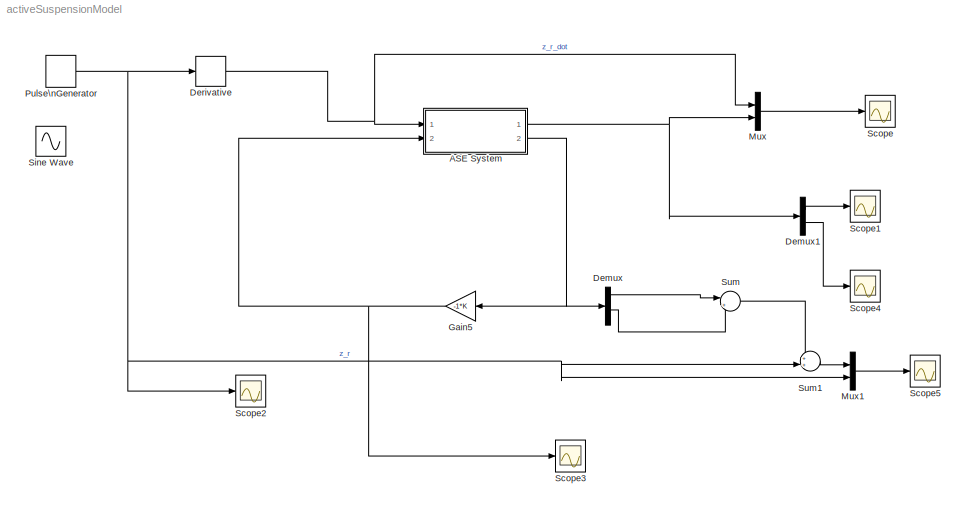
MODEL activeSuspensionModel
KIND model
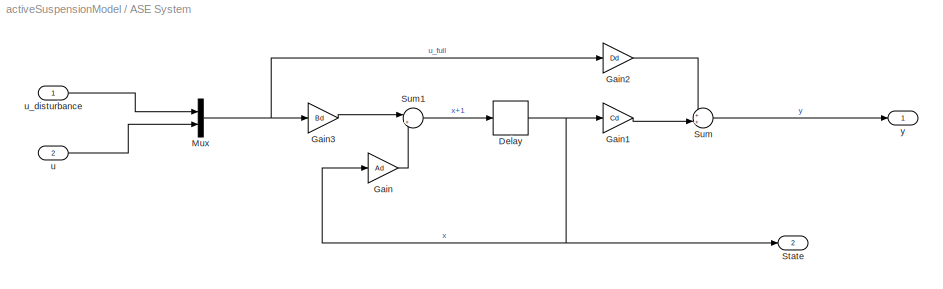
BLOCK [SubSystem] ASE System
  Ports = [2, 2]
  RequestExecContextInheritance = off
  SID = 12
  Variant = off
BLOCK [Delay] ASE System/Delay
  DelayLength = 1
  InputPortMap = u0
  Ports = [1, 1]
  SID = 23
  SampleTime = T
BLOCK [Gain] ASE System/Gain
  Gain = Ad
  Multiplication = Matrix(K*u)
  OutDataTypeStr = Inherit: Inherit via internal rule
  ParamDataTypeStr = Inherit: Inherit via internal rule
  SID = 2
  SaturateOnIntegerOverflow = off
BLOCK [Gain] ASE System/Gain1
  Gain = Cd
  Multiplication = Matrix(K*u)
  OutDataTypeStr = Inherit: Inherit via internal rule
  ParamDataTypeStr = Inherit: Inherit via internal rule
  SID = 3
  SaturateOnIntegerOverflow = off
BLOCK [Gain] ASE System/Gain2
  Gain = Dd
  Multiplication = Matrix(K*u)
  OutDataTypeStr = Inherit: Inherit via internal rule
  ParamDataTypeStr = Inherit: Inherit via internal rule
  SID = 4
  SaturateOnIntegerOverflow = off
BLOCK [Gain] ASE System/Gain3
  Gain = Bd
  Multiplication = Matrix(K*u)
  OutDataTypeStr = Inherit: Inherit via internal rule
  ParamDataTypeStr = Inherit: Inherit via internal rule
  SID = 20
  SaturateOnIntegerOverflow = off
BLOCK [Mux] ASE System/Mux
  DisplayOption = bar
  Inputs = 2
  Ports = [2, 1]
  SID = 19
BLOCK [Outport] ASE System/State
  IconDisplay = Port number
  Port = 2
  SID = 22
BLOCK [Sum] ASE System/Sum
  IconShape = round
  InputSameDT = off
  Inputs = ++|
  OutDataTypeStr = Inherit: Inherit via internal rule
  Ports = [2, 1]
  SID = 5
  SaturateOnIntegerOverflow = off
BLOCK [Sum] ASE System/Sum1
  IconShape = round
  InputSameDT = off
  Inputs = |++
  OutDataTypeStr = Inherit: Inherit via internal rule
  Ports = [2, 1]
  SID = 8
  SaturateOnIntegerOverflow = off
BLOCK [Inport] ASE System/u
  IconDisplay = Port number
  Port = 2
  SID = 13
BLOCK [Inport] ASE System/u_disturbance
  IconDisplay = Port number
  SID = 16
BLOCK [Outport] ASE System/y
  IconDisplay = Port number
  SID = 14
BLOCK [Demux] Demux
  DisplayOption = bar
  Ports = [1, 4]
  SID = 40
BLOCK [Demux] Demux1
  DisplayOption = bar
  Outputs = 2
  Ports = [1, 2]
  SID = 34
BLOCK [Derivative] Derivative
  SID = 25
BLOCK [Gain] Gain5
  Gain = -1*K
  Multiplication = Matrix(K*u)
  OutDataTypeStr = Inherit: Inherit via internal rule
  ParamDataTypeStr = Inherit: Inherit via internal rule
  SID = 11
  SaturateOnIntegerOverflow = off
BLOCK [Mux] Mux
  DisplayOption = bar
  Inputs = 2
  Ports = [2, 1]
  SID = 31
BLOCK [Mux] Mux1
  DisplayOption = bar
  Inputs = 2
  Ports = [2, 1]
  SID = 45
BLOCK [DiscretePulseGenerator] Pulse\nGenerator
  Amplitude = 0.01
  Period = 10/3
  Ports = [0, 1]
  PulseType = Time based
  PulseWidth = 20
  SID = 24
BLOCK [Scope] Scope
  DataFormat = Array
  Decimation = 1
  Grid = on
  LimitDataPoints = on
  MaxDataPoints = 5000
  NumInputPorts = 1
  Ports = [1]
  SID = 7
  SampleInput = off
  SampleTime = -1
  SaveName = ScopeData
  SaveToWorkspace = off
  ShowLegends = on
  TickLabels = OneTimeTick
  TimeRange = auto
  YMax = 18.75
  YMin = -18.75
  ZoomMode = on
BLOCK [Scope] Scope1
  DataFormat = Array
  Decimation = 1
  Grid = on
  LimitDataPoints = on
  MaxDataPoints = 5000
  NumInputPorts = 1
  Ports = [1]
  SID = 32
  SampleInput = off
  SampleTime = -1
  SaveName = ScopeData1
  SaveToWorkspace = off
  ShowLegends = on
  TickLabels = OneTimeTick
  TimeRange = auto
  YMax = 0.00075
  YMin = -0.00075
  ZoomMode = on
BLOCK [Scope] Scope2
  DataFormat = Array
  Decimation = 1
  Grid = on
  LimitDataPoints = on
  MaxDataPoints = 5000
  NumInputPorts = 1
  Ports = [1]
  SID = 35
  SampleInput = off
  SampleTime = -1
  SaveName = ScopeData2
  SaveToWorkspace = off
  ShowLegends = on
  TickLabels = OneTimeTick
  TimeRange = auto
  YMax = 0.01125
  YMin = -0.00125
  ZoomMode = on
BLOCK [Scope] Scope3
  DataFormat = Array
  Decimation = 1
  Grid = on
  LimitDataPoints = on
  MaxDataPoints = 5000
  NumInputPorts = 1
  Ports = [1]
  SID = 36
  SampleInput = off
  SampleTime = -1
  SaveName = ScopeData3
  SaveToWorkspace = off
  ShowLegends = on
  TickLabels = OneTimeTick
  TimeRange = auto
  YMax = 0.78164
  YMin = -0.78171
  ZoomMode = on
BLOCK [Scope] Scope4
  DataFormat = Array
  Decimation = 1
  Grid = on
  LimitDataPoints = on
  MaxDataPoints = 5000
  NumInputPorts = 1
  Ports = [1]
  SID = 37
  SampleInput = off
  SampleTime = -1
  SaveName = ScopeData1
  SaveToWorkspace = off
  ShowLegends = on
  TickLabels = OneTimeTick
  TimeRange = auto
  YMax = 0.18314
  YMin = -0.17968
  ZoomMode = on
BLOCK [Scope] Scope5
  DataFormat = Array
  Decimation = 1
  Grid = on
  LimitDataPoints = on
  MaxDataPoints = 5000
  NumInputPorts = 1
  Ports = [1]
  SID = 43
  SampleInput = off
  SampleTime = -1
  SaveName = ScopeData1
  SaveToWorkspace = off
  ShowLegends = on
  TickLabels = OneTimeTick
  TimeRange = auto
  YMax = 0.01157
  YMin = -0.00198
  ZoomMode = on
BLOCK [Sin] Sine Wave
  Amplitude = 0.01
  Frequency = 3*pi/5
  Ports = [0, 1]
  SID = 39
  SampleTime = 0
BLOCK [Sum] Sum
  IconShape = round
  InputSameDT = off
  Inputs = |++
  OutDataTypeStr = Inherit: Inherit via internal rule
  Ports = [2, 1]
  SID = 41
  SaturateOnIntegerOverflow = off
BLOCK [Sum] Sum1
  IconShape = round
  InputSameDT = off
  Inputs = ++|
  OutDataTypeStr = Inherit: Inherit via internal rule
  Ports = [2, 1]
  SID = 42
  SaturateOnIntegerOverflow = off
NET ASE System/Delay:1 -> ASE System/Gain1:1, ASE System/Gain:1, ASE System/State:1
LINE ASE System/Gain1:1 -> ASE System/Sum:2
LINE ASE System/Gain2:1 -> ASE System/Sum:1
LINE ASE System/Gain3:1 -> ASE System/Sum1:1
LINE ASE System/Gain:1 -> ASE System/Sum1:2
NET ASE System/Mux:1 -> ASE System/Gain2:1, ASE System/Gain3:1
LINE ASE System/Sum1:1 -> ASE System/Delay:1
LINE ASE System/Sum:1 -> ASE System/y:1
LINE ASE System/u:1 -> ASE System/Mux:2
LINE ASE System/u_disturbance:1 -> ASE System/Mux:1
NET ASE System:1 -> Demux1:1, Mux:2
NET ASE System:2 -> Demux:1, Gain5:1
LINE Demux1:1 -> Scope1:1
LINE Demux1:2 -> Scope4:1
LINE Demux:1 -> Sum:1
LINE Demux:3 -> Sum:2
NET Derivative:1 -> ASE System:1, Mux:1
NET Gain5:1 -> ASE System:2, Scope3:1
LINE Mux1:1 -> Scope5:1
LINE Mux:1 -> Scope:1
NET Pulse\nGenerator:1 -> Derivative:1, Mux1:2, Scope2:1, Sum1:2
LINE Sum1:1 -> Mux1:1
LINE Sum:1 -> Sum1:1
note: NET lines group one-source signal fan-out (src -> all destinations, sorted); 1:1 wires keep LINE
